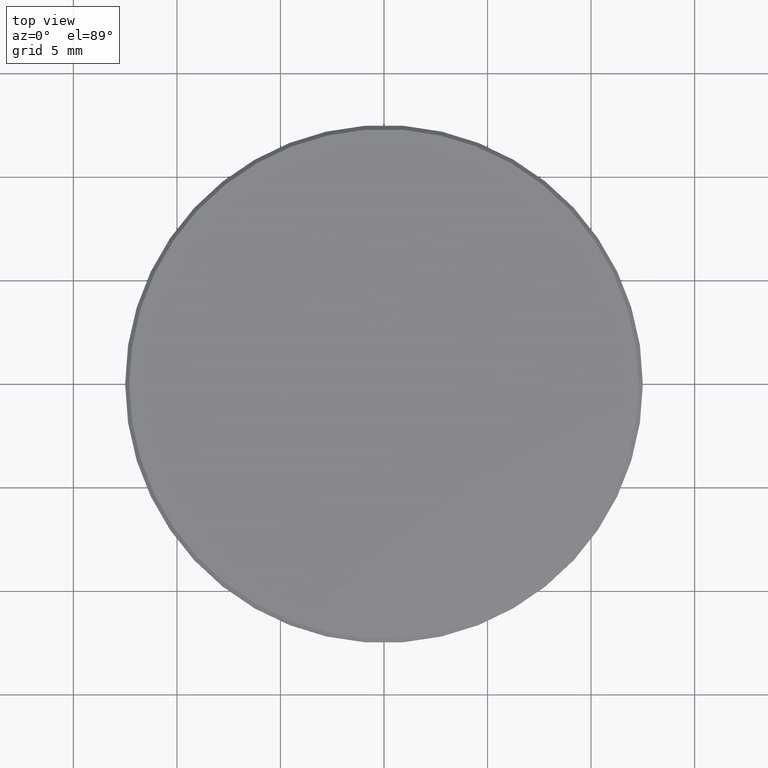
[diagram: clean part render]
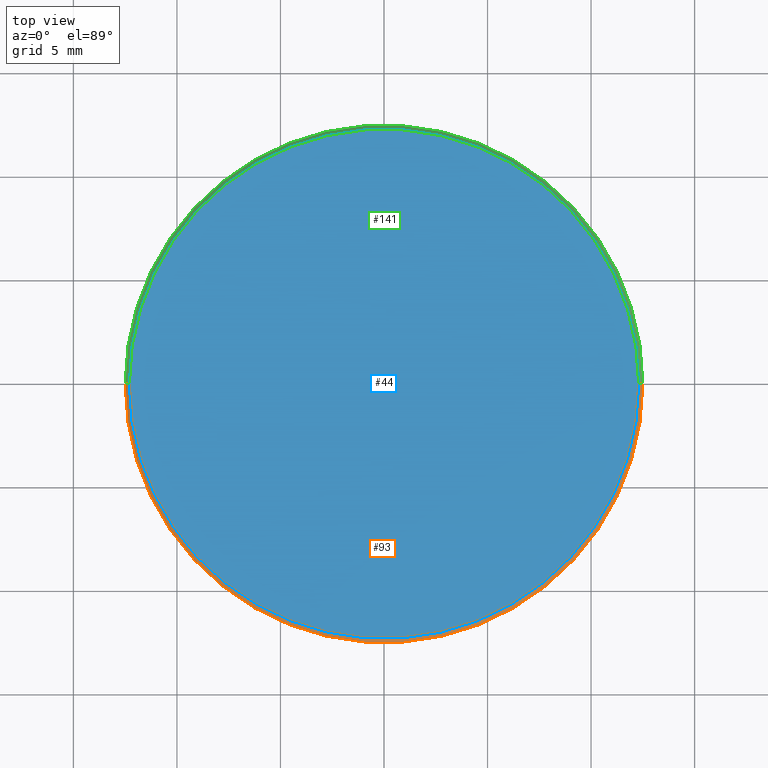
[diagram: same view with three faces highlighted in distinct colors, each labeled with its STEP entity id]
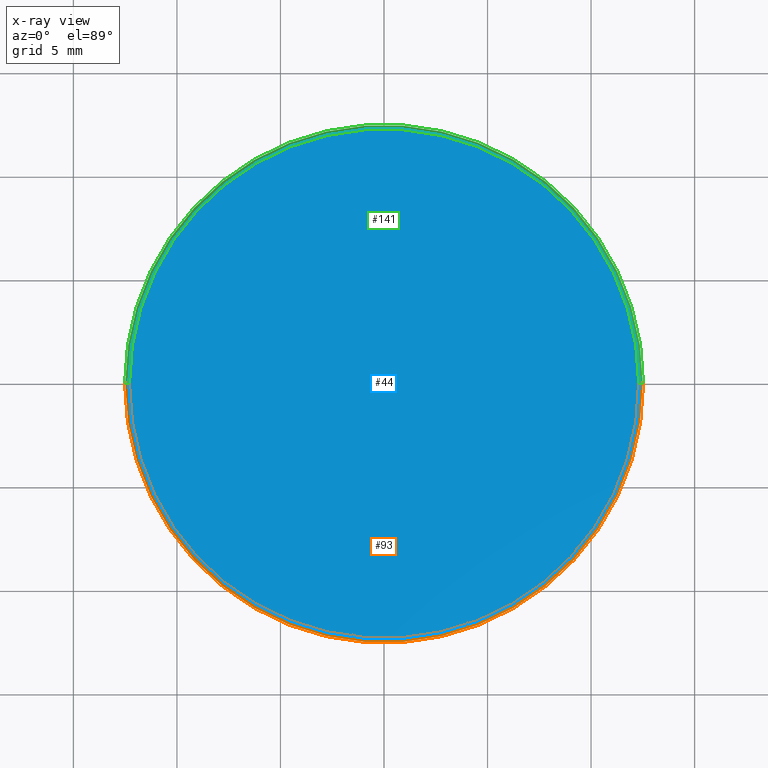
[diagram: x-ray of the same camera — body ghosted, the three highlighted faces saturated]
A machine part, top view with three faces highlighted in distinct colors.
The next image is the same camera in x-ray (body ghosted, the three faces saturated) — at least one of them is partly hidden behind the body in this view.
Their STEP definitions:

[orange] entity #93 — the highlighted conical surface has half-angle 45 deg.
#2 = VERTEX_POINT ( 'NONE', #87 ) ;
#25 = ORIENTED_EDGE ( 'NONE', *, *, #104, .F. ) ;
#26 = CARTESIAN_POINT ( 'NONE',  ( -12.29999999999999893, 0.000000000000000000, 1.000000000000000000 ) ) ;
#27 = VERTEX_POINT ( 'NONE', #216 ) ;
#30 = VERTEX_POINT ( 'NONE', #67 ) ;
#31 = CARTESIAN_POINT ( 'NONE',  ( 0.000000000000000000, 0.000000000000000000, 1.000000000000000000 ) ) ;
#32 = DIRECTION ( 'NONE',  ( 0.000000000000000000, 0.000000000000000000, -1.000000000000000000 ) ) ;
#64 = DIRECTION ( 'NONE',  ( 0.000000000000000000, 0.000000000000000000, 1.000000000000000000 ) ) ;
#67 = CARTESIAN_POINT ( 'NONE',  ( 12.29999999999999893, 1.518562030942717967E-15, 1.000000000000000000 ) ) ;
#70 = LINE ( 'NONE', #199, #234 ) ;
#72 = EDGE_CURVE ( 'NONE', #30, #2, #70, .T. ) ;
#75 = EDGE_LOOP ( 'NONE', ( #129, #94, #153, #25 ) ) ;
#81 = CARTESIAN_POINT ( 'NONE',  ( -12.29999999999999893, 0.000000000000000000, 1.000000000000000000 ) ) ;
#87 = CARTESIAN_POINT ( 'NONE',  ( 12.50000000000000000, 1.530808498934191521E-15, 0.8000000000000029310 ) ) ;
#91 = AXIS2_PLACEMENT_3D ( 'NONE', #31, #32, #197 ) ;
#93 = ADVANCED_FACE ( 'NONE', ( #214 ), #148, .T. ) ;
#94 = ORIENTED_EDGE ( 'NONE', *, *, #236, .F. ) ;
#96 = LINE ( 'NONE', #81, #172 ) ;
#104 = EDGE_CURVE ( 'NONE', #2, #27, #107, .T. ) ;
#107 = CIRCLE ( 'NONE', #122, 12.50000000000000000 ) ;
#111 = DIRECTION ( 'NONE',  ( 1.000000000000000000, 0.000000000000000000, 0.000000000000000000 ) ) ;
#122 = AXIS2_PLACEMENT_3D ( 'NONE', #233, #182, #111 ) ;
#129 = ORIENTED_EDGE ( 'NONE', *, *, #72, .F. ) ;
#130 = DIRECTION ( 'NONE',  ( -0.7071067811865566766, 0.000000000000000000, -0.7071067811865383579 ) ) ;
#132 = DIRECTION ( 'NONE',  ( 1.000000000000000000, 0.000000000000000000, 0.000000000000000000 ) ) ;
#148 = CONICAL_SURFACE ( 'NONE', #91, 12.29999999999999893, 0.7853981633974612686 ) ;
#153 = ORIENTED_EDGE ( 'NONE', *, *, #184, .T. ) ;
#156 = CARTESIAN_POINT ( 'NONE',  ( 0.000000000000000000, 0.000000000000000000, 1.000000000000000000 ) ) ;
#172 = VECTOR ( 'NONE', #130, 1000.000000000000000 ) ;
#182 = DIRECTION ( 'NONE',  ( 0.000000000000000000, 0.000000000000000000, -1.000000000000000000 ) ) ;
#184 = EDGE_CURVE ( 'NONE', #205, #27, #96, .T. ) ;
#185 = CIRCLE ( 'NONE', #196, 12.29999999999999893 ) ;
#195 = DIRECTION ( 'NONE',  ( 0.7071067811865566766, 8.659560562355045024E-17, -0.7071067811865383579 ) ) ;
#196 = AXIS2_PLACEMENT_3D ( 'NONE', #156, #64, #132 ) ;
#197 = DIRECTION ( 'NONE',  ( -1.000000000000000000, 0.000000000000000000, 0.000000000000000000 ) ) ;
#199 = CARTESIAN_POINT ( 'NONE',  ( 12.29999999999999893, 1.506315562951244216E-15, 1.000000000000000000 ) ) ;
#205 = VERTEX_POINT ( 'NONE', #26 ) ;
#214 = FACE_OUTER_BOUND ( 'NONE', #75, .T. ) ;
#216 = CARTESIAN_POINT ( 'NONE',  ( -12.50000000000000000, 0.000000000000000000, 0.8000000000000029310 ) ) ;
#233 = CARTESIAN_POINT ( 'NONE',  ( 0.000000000000000000, 0.000000000000000000, 0.8000000000000029310 ) ) ;
#234 = VECTOR ( 'NONE', #195, 1000.000000000000000 ) ;
#236 = EDGE_CURVE ( 'NONE', #205, #30, #185, .T. ) ;

[blue] entity #44 — the highlighted planar face has unit normal (0, 0, 1).
#4 = EDGE_LOOP ( 'NONE', ( #100, #193 ) ) ;
#18 = EDGE_CURVE ( 'NONE', #30, #205, #126, .T. ) ;
#26 = CARTESIAN_POINT ( 'NONE',  ( -12.29999999999999893, 0.000000000000000000, 1.000000000000000000 ) ) ;
#28 = AXIS2_PLACEMENT_3D ( 'NONE', #50, #238, #142 ) ;
#30 = VERTEX_POINT ( 'NONE', #67 ) ;
#44 = ADVANCED_FACE ( 'NONE', ( #178 ), #105, .T. ) ;
#47 = CARTESIAN_POINT ( 'NONE',  ( 0.000000000000000000, 0.000000000000000000, 1.000000000000000000 ) ) ;
#50 = CARTESIAN_POINT ( 'NONE',  ( 0.000000000000000000, 0.000000000000000000, 1.000000000000000000 ) ) ;
#64 = DIRECTION ( 'NONE',  ( 0.000000000000000000, 0.000000000000000000, 1.000000000000000000 ) ) ;
#67 = CARTESIAN_POINT ( 'NONE',  ( 12.29999999999999893, 1.518562030942717967E-15, 1.000000000000000000 ) ) ;
#100 = ORIENTED_EDGE ( 'NONE', *, *, #236, .T. ) ;
#105 = PLANE ( 'NONE',  #167 ) ;
#126 = CIRCLE ( 'NONE', #28, 12.29999999999999893 ) ;
#132 = DIRECTION ( 'NONE',  ( 1.000000000000000000, 0.000000000000000000, 0.000000000000000000 ) ) ;
#142 = DIRECTION ( 'NONE',  ( 1.000000000000000000, 0.000000000000000000, 0.000000000000000000 ) ) ;
#145 = DIRECTION ( 'NONE',  ( 1.000000000000000000, 0.000000000000000000, -0.000000000000000000 ) ) ;
#156 = CARTESIAN_POINT ( 'NONE',  ( 0.000000000000000000, 0.000000000000000000, 1.000000000000000000 ) ) ;
#167 = AXIS2_PLACEMENT_3D ( 'NONE', #47, #235, #145 ) ;
#178 = FACE_OUTER_BOUND ( 'NONE', #4, .T. ) ;
#185 = CIRCLE ( 'NONE', #196, 12.29999999999999893 ) ;
#193 = ORIENTED_EDGE ( 'NONE', *, *, #18, .T. ) ;
#196 = AXIS2_PLACEMENT_3D ( 'NONE', #156, #64, #132 ) ;
#205 = VERTEX_POINT ( 'NONE', #26 ) ;
#235 = DIRECTION ( 'NONE',  ( 0.000000000000000000, 0.000000000000000000, 1.000000000000000000 ) ) ;
#236 = EDGE_CURVE ( 'NONE', #205, #30, #185, .T. ) ;
#238 = DIRECTION ( 'NONE',  ( 0.000000000000000000, 0.000000000000000000, 1.000000000000000000 ) ) ;

[green] entity #141 — the highlighted conical surface has half-angle 45 deg.
#2 = VERTEX_POINT ( 'NONE', #87 ) ;
#18 = EDGE_CURVE ( 'NONE', #30, #205, #126, .T. ) ;
#26 = CARTESIAN_POINT ( 'NONE',  ( -12.29999999999999893, 0.000000000000000000, 1.000000000000000000 ) ) ;
#27 = VERTEX_POINT ( 'NONE', #216 ) ;
#28 = AXIS2_PLACEMENT_3D ( 'NONE', #50, #238, #142 ) ;
#30 = VERTEX_POINT ( 'NONE', #67 ) ;
#38 = CIRCLE ( 'NONE', #53, 12.50000000000000000 ) ;
#50 = CARTESIAN_POINT ( 'NONE',  ( 0.000000000000000000, 0.000000000000000000, 1.000000000000000000 ) ) ;
#53 = AXIS2_PLACEMENT_3D ( 'NONE', #200, #227, #134 ) ;
#67 = CARTESIAN_POINT ( 'NONE',  ( 12.29999999999999893, 1.518562030942717967E-15, 1.000000000000000000 ) ) ;
#70 = LINE ( 'NONE', #199, #234 ) ;
#71 = DIRECTION ( 'NONE',  ( 0.000000000000000000, 0.000000000000000000, -1.000000000000000000 ) ) ;
#72 = EDGE_CURVE ( 'NONE', #30, #2, #70, .T. ) ;
#79 = AXIS2_PLACEMENT_3D ( 'NONE', #240, #71, #124 ) ;
#80 = ORIENTED_EDGE ( 'NONE', *, *, #18, .F. ) ;
#81 = CARTESIAN_POINT ( 'NONE',  ( -12.29999999999999893, 0.000000000000000000, 1.000000000000000000 ) ) ;
#87 = CARTESIAN_POINT ( 'NONE',  ( 12.50000000000000000, 1.530808498934191521E-15, 0.8000000000000029310 ) ) ;
#96 = LINE ( 'NONE', #81, #172 ) ;
#124 = DIRECTION ( 'NONE',  ( -1.000000000000000000, 0.000000000000000000, 0.000000000000000000 ) ) ;
#126 = CIRCLE ( 'NONE', #28, 12.29999999999999893 ) ;
#130 = DIRECTION ( 'NONE',  ( -0.7071067811865566766, 0.000000000000000000, -0.7071067811865383579 ) ) ;
#134 = DIRECTION ( 'NONE',  ( 1.000000000000000000, 0.000000000000000000, 0.000000000000000000 ) ) ;
#141 = ADVANCED_FACE ( 'NONE', ( #162 ), #215, .T. ) ;
#142 = DIRECTION ( 'NONE',  ( 1.000000000000000000, 0.000000000000000000, 0.000000000000000000 ) ) ;
#149 = EDGE_CURVE ( 'NONE', #27, #2, #38, .T. ) ;
#162 = FACE_OUTER_BOUND ( 'NONE', #191, .T. ) ;
#164 = ORIENTED_EDGE ( 'NONE', *, *, #149, .F. ) ;
#171 = ORIENTED_EDGE ( 'NONE', *, *, #184, .F. ) ;
#172 = VECTOR ( 'NONE', #130, 1000.000000000000000 ) ;
#184 = EDGE_CURVE ( 'NONE', #205, #27, #96, .T. ) ;
#191 = EDGE_LOOP ( 'NONE', ( #80, #229, #164, #171 ) ) ;
#195 = DIRECTION ( 'NONE',  ( 0.7071067811865566766, 8.659560562355045024E-17, -0.7071067811865383579 ) ) ;
#199 = CARTESIAN_POINT ( 'NONE',  ( 12.29999999999999893, 1.506315562951244216E-15, 1.000000000000000000 ) ) ;
#200 = CARTESIAN_POINT ( 'NONE',  ( 0.000000000000000000, 0.000000000000000000, 0.8000000000000029310 ) ) ;
#205 = VERTEX_POINT ( 'NONE', #26 ) ;
#215 = CONICAL_SURFACE ( 'NONE', #79, 12.29999999999999893, 0.7853981633974612686 ) ;
#216 = CARTESIAN_POINT ( 'NONE',  ( -12.50000000000000000, 0.000000000000000000, 0.8000000000000029310 ) ) ;
#227 = DIRECTION ( 'NONE',  ( 0.000000000000000000, 0.000000000000000000, -1.000000000000000000 ) ) ;
#229 = ORIENTED_EDGE ( 'NONE', *, *, #72, .T. ) ;
#234 = VECTOR ( 'NONE', #195, 1000.000000000000000 ) ;
#238 = DIRECTION ( 'NONE',  ( 0.000000000000000000, 0.000000000000000000, 1.000000000000000000 ) ) ;
#240 = CARTESIAN_POINT ( 'NONE',  ( 0.000000000000000000, 0.000000000000000000, 1.000000000000000000 ) ) ;